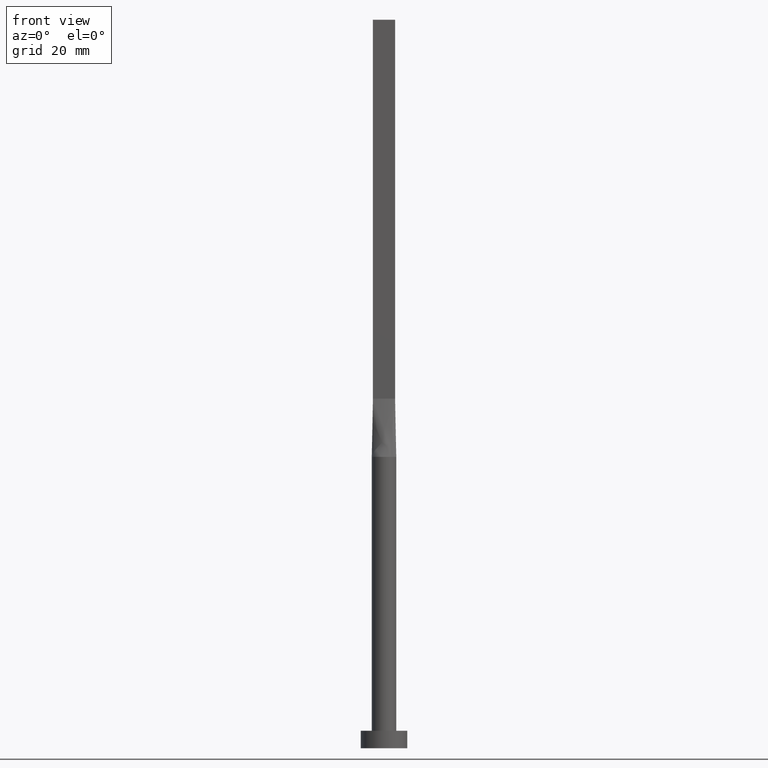
[diagram: clean part render]
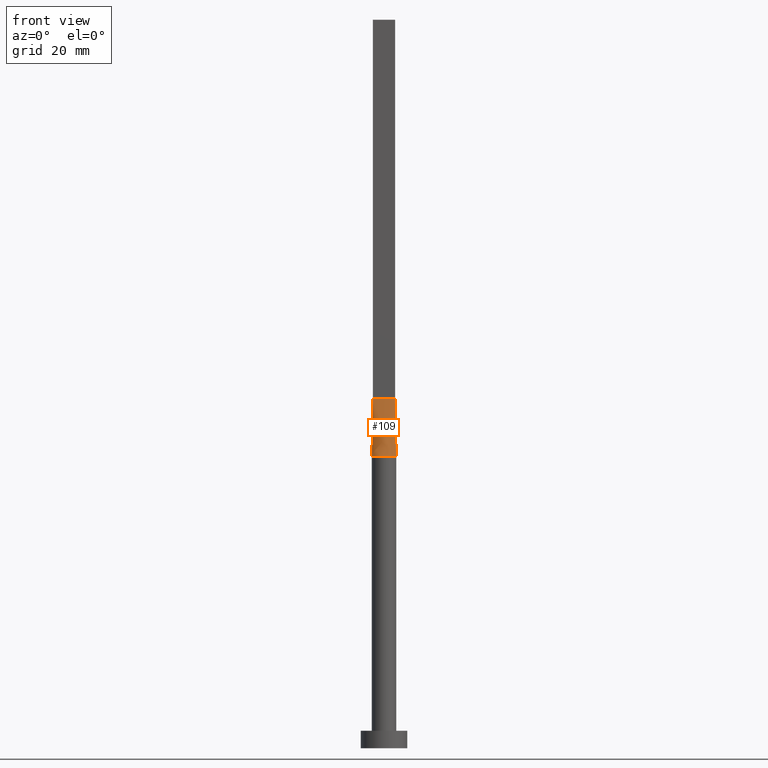
[diagram: same view with one face highlighted and labeled with its STEP entity id]
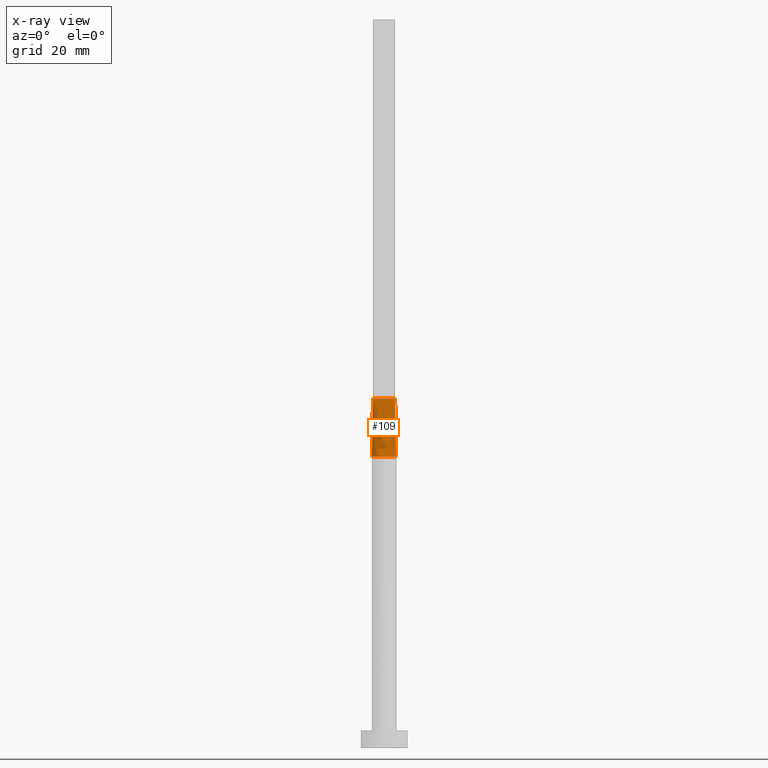
[diagram: x-ray of the same camera — body ghosted, the highlighted face saturated]
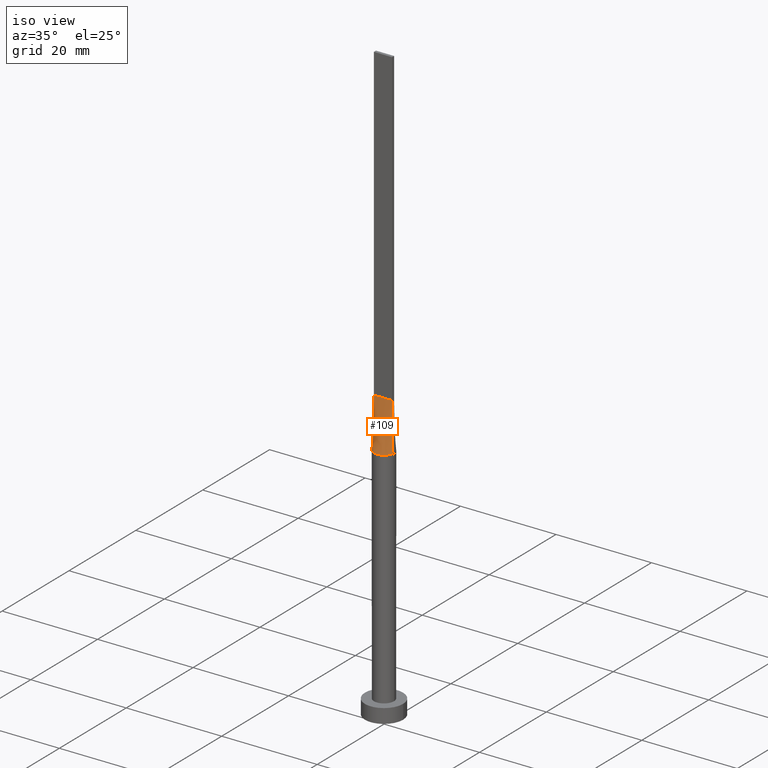
[diagram: same view with one face highlighted and labeled with its STEP entity id]
A machine part, front view. The second image highlights one B-rep face of the part: STEP entity #109.
The next image is the same camera in x-ray: the body ghosted, the highlighted face saturated — about 0% of this face is hidden behind the body in this view.
A second angle (iso view) of the same face is appended — the face is thin or edge-on in the first view.
In plain terms, the highlighted face is a freeform B-spline surface patch.
Its self-contained STEP definition (entity closure, byte-faithful):
#4 = CARTESIAN_POINT ( 'NONE',  ( 0.7916666666666672958, -0.2999999999999996003, 60.00000000000000000 ) ) ;
#7 = VECTOR ( 'NONE', #484, 1000.000000000000000 ) ;
#9 = CARTESIAN_POINT ( 'NONE',  ( -1.819451111325472548, -1.069832718648841663, 50.00000000000000711 ) ) ;
#21 = VERTEX_POINT ( 'NONE', #143 ) ;
#27 = ORIENTED_EDGE ( 'NONE', *, *, #417, .T. ) ;
#31 = CARTESIAN_POINT ( 'NONE',  ( -2.047342767731585411, -0.4982646475365654637, 50.00000000000000711 ) ) ;
#33 = CARTESIAN_POINT ( 'NONE',  ( -1.899999999999999911, -0.2999999999999994893, 60.00000000000000711 ) ) ;
#45 = CARTESIAN_POINT ( 'NONE',  ( -0.2990728642939464721, -2.100000000000000977, 50.00000000000000711 ) ) ;
#48 = CARTESIAN_POINT ( 'NONE',  ( -0.7916666666666655194, -0.2999999999999995448, 60.00000000000000000 ) ) ;
#55 = ORIENTED_EDGE ( 'NONE', *, *, #368, .T. ) ;
#64 = CARTESIAN_POINT ( 'NONE',  ( -2.074302227191044956, -0.3275214042933223824, 50.00000000000000000 ) ) ;
#69 = CARTESIAN_POINT ( 'NONE',  ( 2.074302227191044956, -0.3275214042933231595, 50.00000000000000000 ) ) ;
#71 = CARTESIAN_POINT ( 'NONE',  ( -1.583333333333333037, -0.2999999999999994893, 60.00000000000000711 ) ) ;
#76 = EDGE_CURVE ( 'NONE', #156, #21, #507, .T. ) ;
#78 = CARTESIAN_POINT ( 'NONE',  ( 1.987151113595522212, -0.3137607021466614632, 55.00000000000000711 ) ) ;
#82 = CARTESIAN_POINT ( 'NONE',  ( -0.1583333333333317716, -0.2999999999999996003, 60.00000000000000000 ) ) ;
#87 = CARTESIAN_POINT ( 'NONE',  ( 1.119115561862284114, -1.799829988698610883, 49.99999999999997868 ) ) ;
#100 = AXIS2_PLACEMENT_3D ( 'NONE', #477, #206, #384 ) ;
#109 = ADVANCED_FACE ( 'NONE', ( #249 ), #365, .T. ) ;
#124 = EDGE_CURVE ( 'NONE', #292, #21, #219, .T. ) ;
#134 = CARTESIAN_POINT ( 'NONE',  ( -0.3166666666666652086, -0.2999999999999996003, 60.00000000000000000 ) ) ;
#137 = VECTOR ( 'NONE', #435, 1000.000000000000114 ) ;
#140 = CARTESIAN_POINT ( 'NONE',  ( -1.342614810400548864, -1.634425746458369355, 50.00000000000001421 ) ) ;
#143 = CARTESIAN_POINT ( 'NONE',  ( 1.899999999999999023, -0.2999999999999997669, 60.00000000000000711 ) ) ;
#156 = VERTEX_POINT ( 'NONE', #33 ) ;
#162 = LINE ( 'NONE', #200, #503 ) ;
#181 = CARTESIAN_POINT ( 'NONE',  ( -1.266666666666665941, -0.2999999999999994893, 60.00000000000000000 ) ) ;
#184 = CARTESIAN_POINT ( 'NONE',  ( 1.692271541701912962, -1.268928319070363520, 50.00000000000004263 ) ) ;
#188 = CARTESIAN_POINT ( 'NONE',  ( 0.6333333333333341919, -0.2999999999999996003, 60.00000000000000000 ) ) ;
#200 = CARTESIAN_POINT ( 'NONE',  ( -1.987151113595522656, -0.3137607021466609636, 55.00000000000000711 ) ) ;
#206 = DIRECTION ( 'NONE',  ( 0.000000000000000000, 0.000000000000000000, 1.000000000000000000 ) ) ;
#207 = CARTESIAN_POINT ( 'NONE',  ( 1.741666666666665586, -0.2999999999999997113, 60.00000000000000000 ) ) ;
#219 = LINE ( 'NONE', #78, #137 ) ;
#226 = CARTESIAN_POINT ( 'NONE',  ( 0.2990728642939452508, -2.100000000000000533, 50.00000000000001421 ) ) ;
#227 = CARTESIAN_POINT ( 'NONE',  ( 0.5970064165420505553, -2.033566071616262683, 50.00000000000000711 ) ) ;
#249 = FACE_OUTER_BOUND ( 'NONE', #433, .T. ) ;
#268 = CARTESIAN_POINT ( 'NONE',  ( 1.108333333333333393, -0.2999999999999996558, 60.00000000000000000 ) ) ;
#275 = CARTESIAN_POINT ( 'NONE',  ( -1.899999999999999911, -0.2999999999999994893, 60.00000000000000711 ) ) ;
#292 = VERTEX_POINT ( 'NONE', #316 ) ;
#293 = CARTESIAN_POINT ( 'NONE',  ( -1.996565546919327971, -0.6845950695482642123, 50.00000000000000000 ) ) ;
#306 = CARTESIAN_POINT ( 'NONE',  ( -0.6333333333333320825, -0.2999999999999996003, 60.00000000000000000 ) ) ;
#313 = CARTESIAN_POINT ( 'NONE',  ( 1.996565546919328415, -0.6845950695482654336, 50.00000000000001421 ) ) ;
#315 = CARTESIAN_POINT ( 'NONE',  ( -1.692271541701912296, -1.268928319070361965, 50.00000000000000000 ) ) ;
#316 = CARTESIAN_POINT ( 'NONE',  ( 2.074492141291045755, -0.3275508996892426139, 50.00000000000000000 ) ) ;
#359 = CARTESIAN_POINT ( 'NONE',  ( -0.5970064165420509994, -2.033566071616262239, 49.99999999999999289 ) ) ;
#365 = B_SPLINE_SURFACE_WITH_KNOTS ( 'NONE', 3, 1, ( 
 ( #64, #436 ),
 ( #31, #570 ),
 ( #293, #71 ),
 ( #9, #181 ),
 ( #315, #456 ),
 ( #140, #48 ),
 ( #454, #306 ),
 ( #359, #134 ),
 ( #45, #82 ),
 ( #226, #405 ),
 ( #227, #410 ),
 ( #87, #188 ),
 ( #548, #4 ),
 ( #184, #268 ),
 ( #545, #541 ),
 ( #313, #414 ),
 ( #366, #207 ),
 ( #69, #527 ) ),
 .UNSPECIFIED., .F., .F., .F.,
 ( 4, 2, 2, 2, 2, 2, 2, 2, 4 ),
 ( 2, 2 ),
 ( 0.000000000000000000, 0.1249999999999999445, 0.2499999999999999445, 0.3749999999999999445, 0.5000000000000000000, 0.6249999999999998890, 0.7499999999999998890, 0.8749999999999997780, 1.000000000000000000 ),
 ( 0.000000000000000000, 1.000000000000000000 ),
 .UNSPECIFIED. ) ;
#366 = CARTESIAN_POINT ( 'NONE',  ( 2.047342767731585855, -0.4982646475365661298, 50.00000000000000711 ) ) ;
#368 = EDGE_CURVE ( 'NONE', #156, #501, #162, .T. ) ;
#384 = DIRECTION ( 'NONE',  ( 1.000000000000000000, 0.000000000000000000, 0.000000000000000000 ) ) ;
#405 = CARTESIAN_POINT ( 'NONE',  ( 0.1583333333333347970, -0.2999999999999996003, 60.00000000000000000 ) ) ;
#410 = CARTESIAN_POINT ( 'NONE',  ( 0.3166666666666678731, -0.2999999999999996003, 60.00000000000000000 ) ) ;
#414 = CARTESIAN_POINT ( 'NONE',  ( 1.583333333333332371, -0.2999999999999997113, 60.00000000000000000 ) ) ;
#417 = EDGE_CURVE ( 'NONE', #501, #292, #523, .T. ) ;
#433 = EDGE_LOOP ( 'NONE', ( #27, #483, #439, #55 ) ) ;
#435 = DIRECTION ( 'NONE',  ( -0.01742750958084847077, 0.002751712039081371727, 0.9998443428807622935 ) ) ;
#436 = CARTESIAN_POINT ( 'NONE',  ( -1.899999999999999911, -0.2999999999999994893, 60.00000000000000711 ) ) ;
#439 = ORIENTED_EDGE ( 'NONE', *, *, #76, .F. ) ;
#454 = CARTESIAN_POINT ( 'NONE',  ( -1.119115561862284558, -1.799829988698610439, 50.00000000000000000 ) ) ;
#456 = CARTESIAN_POINT ( 'NONE',  ( -1.108333333333332504, -0.2999999999999994893, 60.00000000000000000 ) ) ;
#472 = DIRECTION ( 'NONE',  ( -0.01742750958084838056, -0.002751712039081322721, -0.9998443428807622935 ) ) ;
#477 = CARTESIAN_POINT ( 'NONE',  ( 0.000000000000000000, 0.000000000000000000, 50.00000000000000000 ) ) ;
#483 = ORIENTED_EDGE ( 'NONE', *, *, #124, .T. ) ;
#484 = DIRECTION ( 'NONE',  ( 1.000000000000000000, -7.132909029509898176E-17, 0.000000000000000000 ) ) ;
#501 = VERTEX_POINT ( 'NONE', #533 ) ;
#503 = VECTOR ( 'NONE', #472, 1000.000000000000114 ) ;
#507 = LINE ( 'NONE', #275, #7 ) ;
#523 = CIRCLE ( 'NONE', #100, 2.100000000000000089 ) ;
#527 = CARTESIAN_POINT ( 'NONE',  ( 1.899999999999999023, -0.2999999999999997669, 60.00000000000000711 ) ) ;
#533 = CARTESIAN_POINT ( 'NONE',  ( -2.074486960997361962, -0.3275502116714910095, 50.00000000000000000 ) ) ;
#541 = CARTESIAN_POINT ( 'NONE',  ( 1.266666666666666385, -0.2999999999999997113, 60.00000000000000000 ) ) ;
#545 = CARTESIAN_POINT ( 'NONE',  ( 1.819451111325472104, -1.069832718648842107, 50.00000000000000000 ) ) ;
#548 = CARTESIAN_POINT ( 'NONE',  ( 1.342614810400548864, -1.634425746458370021, 50.00000000000001421 ) ) ;
#570 = CARTESIAN_POINT ( 'NONE',  ( -1.741666666666666474, -0.2999999999999994893, 60.00000000000000711 ) ) ;